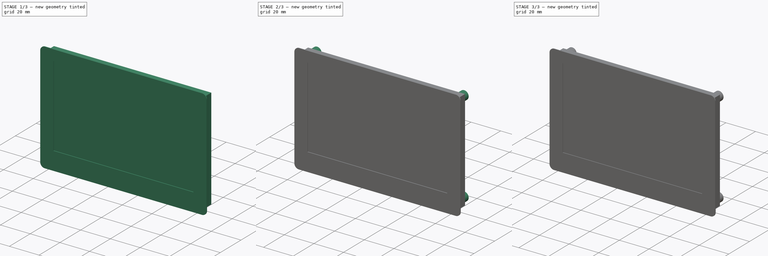
[diagram: build sequence overview — one tinted view per stage of 3, left to right]
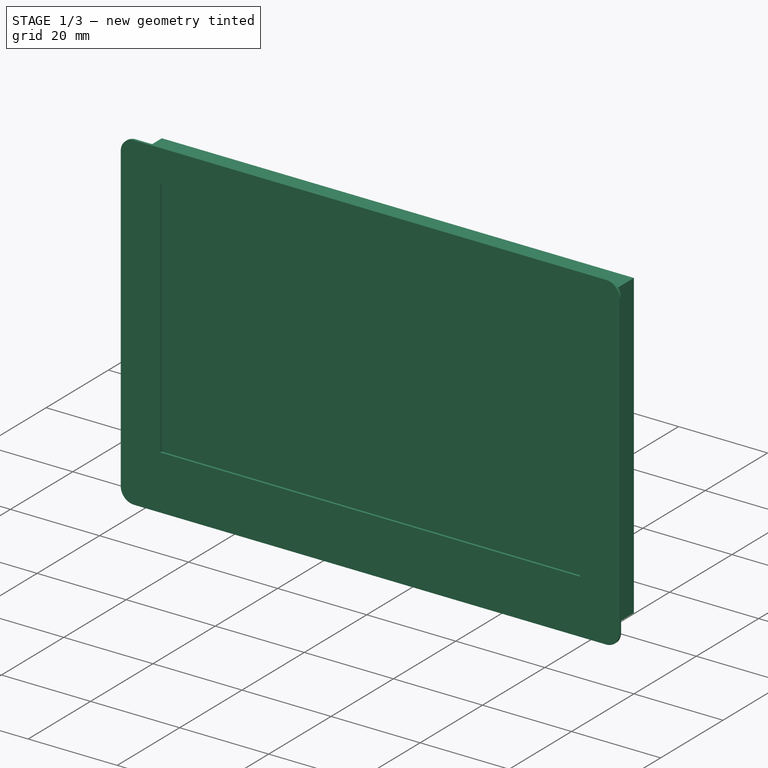
[diagram: stage 1 of 3 — iso view after this stage's code; geometry added in this stage tinted green]
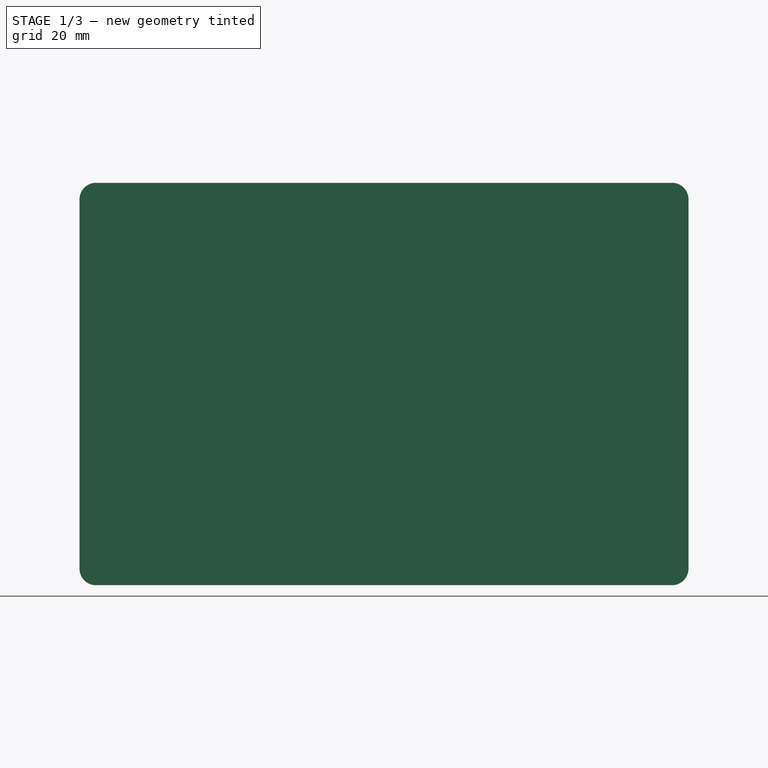
[diagram: stage 1 of 3 — front view after this stage's code; geometry added in this stage tinted green]
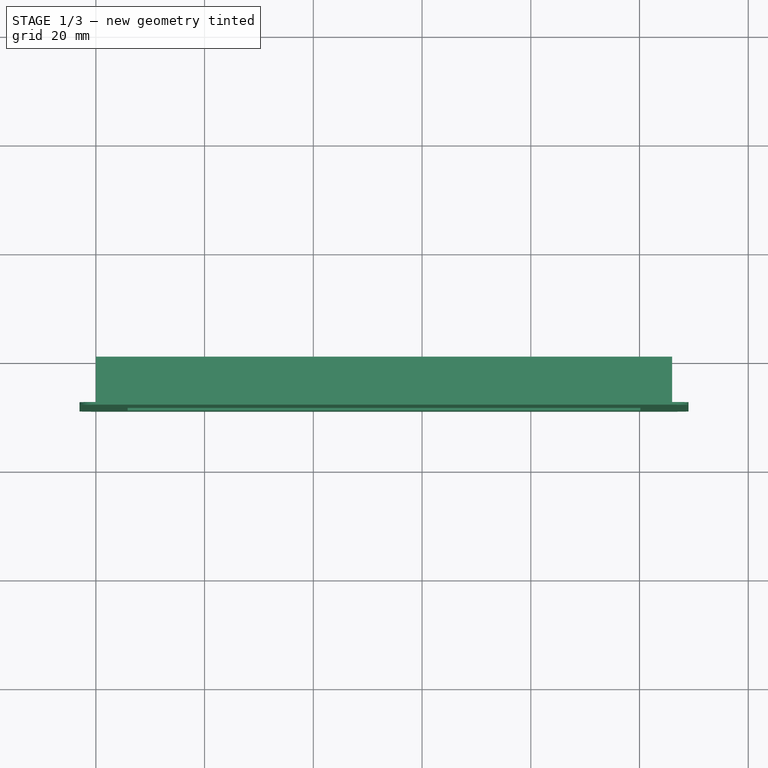
[diagram: stage 1 of 3 — top view after this stage's code; geometry added in this stage tinted green]
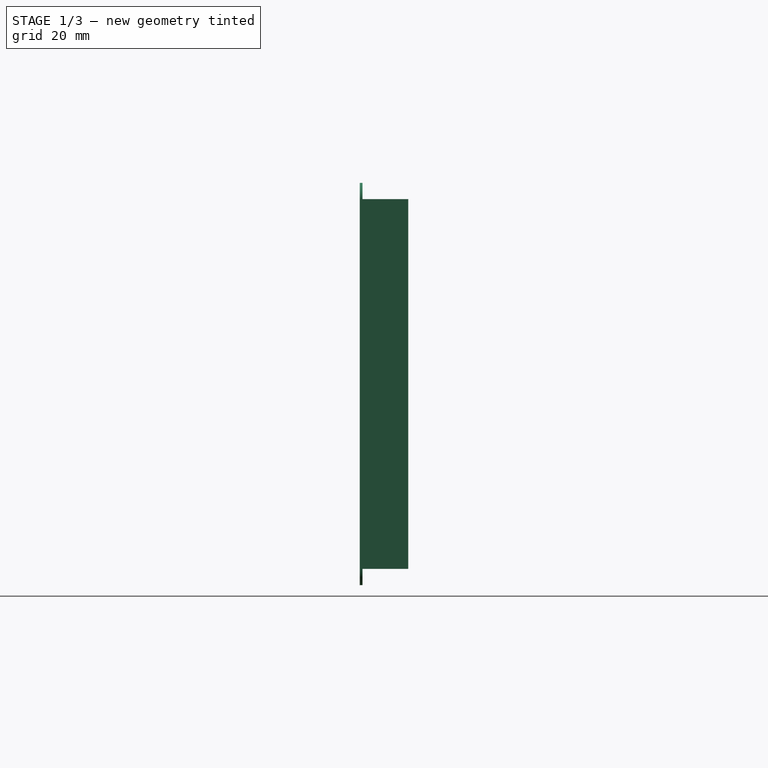
[diagram: stage 1 of 3 — right view after this stage's code; geometry added in this stage tinted green]
FCSTD DOCUMENT  (FreeCAD 1.0R39109 (Git))
Label: Gehäuse
License: All rights reserved
LicenseURL: https://en.wikipedia.org/wiki/All_rights_reserved
objects: Sketcher::SketchObject×6, PartDesign::Pad×5, PartDesign::Body×2, App::Part×1, PartDesign::ShapeBinder×1, PartDesign::SubShapeBinder×1
note: 31 computed .brp shape members not serialized (recipe doc carries the construction recipe); baked Part::Feature solids carry a one-line shape summary decoded from their .brp

FEATURE [Sketcher::SketchObject] Sketch
  ArcFitTolerance = 1e-06
  AttachmentSupport = -> [XZ_Plane001]
  FullyConstrained = true
  MakeInternals = false
  MapMode = 5
  Placement = pos=(0,0,0) rot=(1,0,0;1.5708rad)
  sketch-geometry (4):
    g0: LineSegment StartX=0 StartY=0 StartZ=0 EndX=106 EndY=0 EndZ=0
    g1: LineSegment StartX=106 StartY=0 StartZ=0 EndX=106 EndY=68 EndZ=0
    g2: LineSegment StartX=106 StartY=68 StartZ=0 EndX=0 EndY=68 EndZ=0
    g3: LineSegment StartX=0 StartY=68 StartZ=0 EndX=0 EndY=0 EndZ=0
  constraints (11):
    c: Coincident(g0,g1)
    c: Coincident(g1,g2)
    c: Coincident(g2,g3)
    c: Coincident(g3,g0)
    c: Horizontal(g0)
    c: Horizontal(g2)
    c: Vertical(g1)
    c: Vertical(g3)
    c: Distance(g1,g3) = 106
    c: Distance(g0,g2) = 68
    c: Coincident(g0,g-1)
FEATURE [PartDesign::Pad] Pad
  Direction = (0,-1,2e-16)
  Length = 8.4
  Length2 = 10
  Placement = pos=(0,0,0) rot=(1,0,0;1.5708rad)
  Profile = -> Sketch
  ReferenceAxis = -> Sketch [N_Axis]
  Refine = true
  Suppressed = false
  Type = 0
FEATURE [PartDesign::Body] Body  label="LCD"
  AllowCompound = false
  Group = -> [Sketch,Pad,Sketch001,Pad001,Sketch002,Pad002,Sketch003,Pad003]
  Origin = -> Origin001
  Tip = -> Pad003
FEATURE [App::Part] Part
  Group = -> [Body]
  Origin = -> Origin
FEATURE [PartDesign::ShapeBinder] CopyBinder
  Placement = pos=(0,0,0) rot=(1,0,0;1.5708rad)
  TraceSupport = false
FEATURE [Sketcher::SketchObject] Sketch005
  ArcFitTolerance = 1e-06
  AttachmentSupport = -> [CopyBinder]
  ExternalGeometry = -> [CopyBinder]
  FullyConstrained = false
  MakeInternals = false
  MapMode = 5
  Placement = pos=(0,-8.4,0) rot=(1,0,0;1.5708rad)
  sketch-geometry (16):
    g0: LineSegment [constr] StartX=0 StartY=68 StartZ=0 EndX=0 EndY=0 EndZ=0
    g1: LineSegment [constr] StartX=0 StartY=0 StartZ=0 EndX=106 EndY=0 EndZ=0
    g2: LineSegment [constr] StartX=106 StartY=0 StartZ=0 EndX=106 EndY=68 EndZ=0
    g3: LineSegment [constr] StartX=106 StartY=68 StartZ=0 EndX=0 EndY=68 EndZ=0
    g4: LineSegment StartX=-3 StartY=68 StartZ=0 EndX=-3 EndY=0 EndZ=0
    g5: ArcOfCircle CenterX=0 CenterY=0 CenterZ=0 NormalX=0 NormalY=0 NormalZ=-1 AngleXU=-3.14159 Radius=3 StartAngle=1.5708 EndAngle=3.14159
    g6: LineSegment StartX=-2e-16 StartY=-3 StartZ=0 EndX=106 EndY=-3 EndZ=0
    g7: ArcOfCircle CenterX=106 CenterY=0 CenterZ=0 NormalX=0 NormalY=0 NormalZ=-1 AngleXU=1.5708 Radius=3 StartAngle=1.5708 EndAngle=3.14159
    g8: LineSegment StartX=109 StartY=2e-16 StartZ=0 EndX=109 EndY=68 EndZ=0
    g9: ArcOfCircle CenterX=106 CenterY=68 CenterZ=0 NormalX=0 NormalY=0 NormalZ=-1 AngleXU=0 Radius=3 StartAngle=1.5708 EndAngle=3.14159
    g10: LineSegment StartX=106 StartY=71 StartZ=0 EndX=0 EndY=71 EndZ=0
    g11: ArcOfCircle CenterX=0 CenterY=68 CenterZ=0 NormalX=0 NormalY=0 NormalZ=-1 AngleXU=-1.5708 Radius=3 StartAngle=1.5708 EndAngle=3.14159
    g12: LineSegment StartX=5.85 StartY=63.8 StartZ=0 EndX=5.85 EndY=9.2 EndZ=0
    g13: LineSegment StartX=5.85 StartY=9.2 StartZ=0 EndX=100.15 EndY=9.2 EndZ=0
    g14: LineSegment StartX=100.15 StartY=9.2 StartZ=0 EndX=100.15 EndY=63.8 EndZ=0
    g15: LineSegment StartX=100.15 StartY=63.8 StartZ=0 EndX=5.85 EndY=63.8 EndZ=0
  constraints (28):
    c: Coincident(g0,g1)
    c: Coincident(g1,g2)
    c: Coincident(g2,g3)
    c: Coincident(g3,g0)
    c: Vertical(g0)
    c: Vertical(g2)
    c: Horizontal(g1)
    c: Horizontal(g3)
    c: Coincident(g0,g-9)
    c: Coincident(g1,g-10)
    c: Tangent(g4,g5) = -1.5708
    c: Tangent(g4,g11) = -1.5708
    c: Tangent(g5,g6) = -1.5708
    c: Tangent(g6,g7) = -1.5708
    c: Tangent(g7,g8) = -1.5708
    c: Tangent(g8,g9) = -1.5708
    c: Tangent(g9,g10) = -1.5708
    c: Tangent(g10,g11) = -1.5708
    c: Coincident(g12,g13)
    c: Coincident(g13,g14)
    c: Coincident(g14,g15)
    c: Coincident(g15,g12)
    c: Vertical(g12)
    c: Vertical(g14)
    c: Horizontal(g13)
    c: Horizontal(g15)
    c: Coincident(g12,g-5)
    c: Coincident(g13,g-6)
FEATURE [PartDesign::Pad] Pad004
  Direction = (0,-1,2e-16)
  Length = 0.5
  Length2 = 10
  Placement = pos=(0,0,0) rot=(1,0,0;1.5708rad)
  Profile = -> Sketch005
  ReferenceAxis = -> Sketch005 [N_Axis]
  Refine = true
  Suppressed = false
  Type = 0
FEATURE [PartDesign::SubShapeBinder] Binder
  BindCopyOnChange = 0
  BindMode = 0
  ClaimChildren = false
  Context = -> Body001 [Binder.]
  Fuse = false
  MakeFace = true
  OffsetFill = false
  OffsetIntersection = false
  OffsetJoinType = 0
  OffsetOpenResult = false
  PartialLoad = false
  Refine = true
  Relative = true
  Support = -> [Pad004[Face13]]
  _Version = 2
FEATURE [Sketcher::SketchObject] Sketch006
  ArcFitTolerance = 1e-06
  AttachmentSupport = -> [Pad004]
  FullyConstrained = true
  MakeInternals = false
  MapMode = 5
  Placement = pos=(0,-8.4,2.8e-15) rot=(-1,0,0;1.5708rad)
FEATURE [PartDesign::Body] Body001  label="Body"
  AllowCompound = false
  Group = -> [CopyBinder,Sketch005,Pad004,Binder,Sketch006]
  Origin = -> Origin002
  Tip = -> Pad004
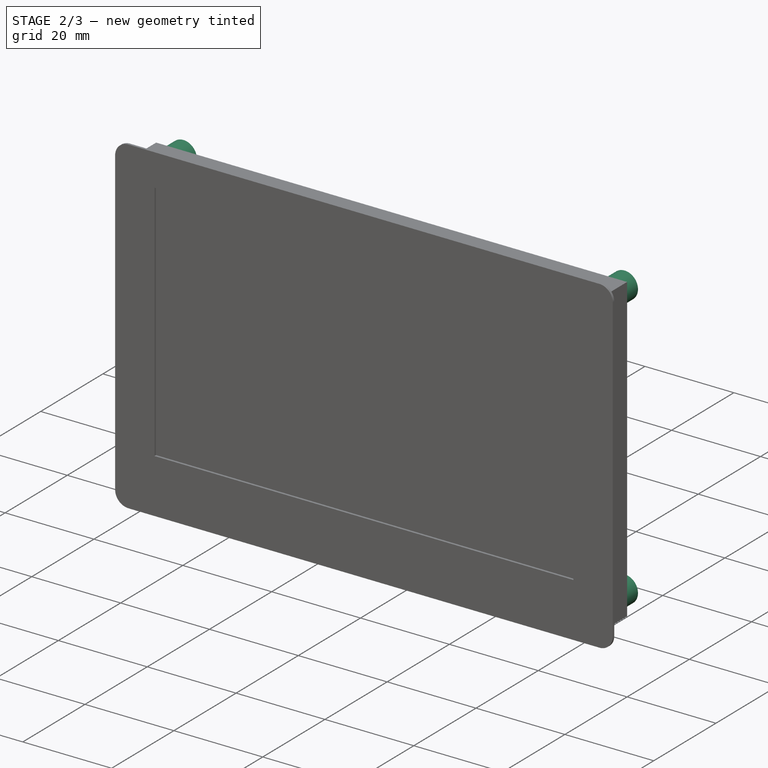
[diagram: stage 2 of 3 — iso view after this stage's code; geometry added in this stage tinted green]
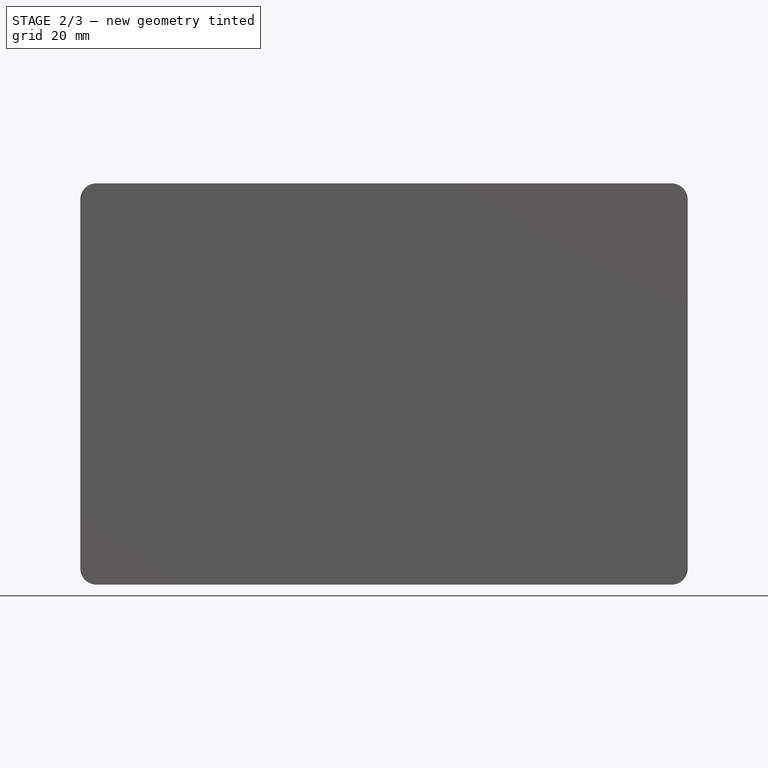
[diagram: stage 2 of 3 — front view after this stage's code; geometry added in this stage tinted green]
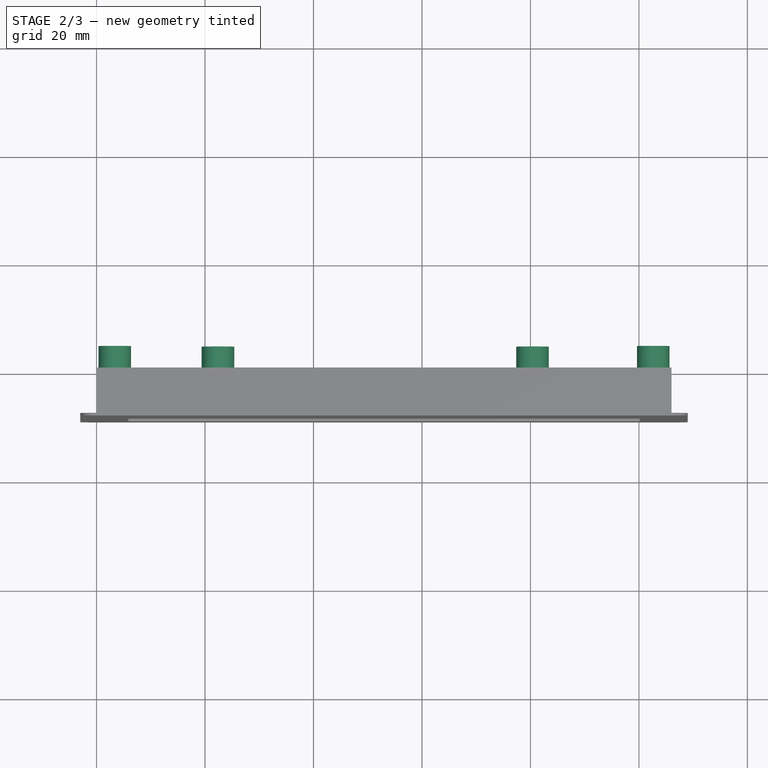
[diagram: stage 2 of 3 — top view after this stage's code; geometry added in this stage tinted green]
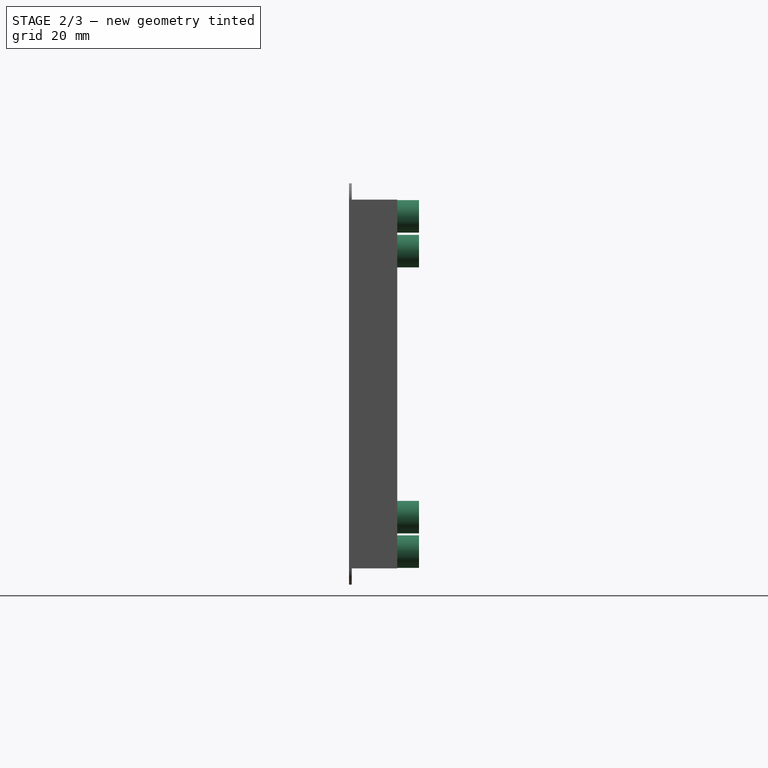
[diagram: stage 2 of 3 — right view after this stage's code; geometry added in this stage tinted green]
FEATURE [Sketcher::SketchObject] Sketch001
  ArcFitTolerance = 1e-06
  AttachmentSupport = -> [Pad]
  ExternalGeometry = -> [Pad]
  FullyConstrained = true
  MakeInternals = false
  MapMode = 5
  Placement = pos=(0,7.6e-15,0) rot=(-1,0,0;1.5708rad)
  sketch-geometry (10):
    g0: Circle CenterX=3.35 CenterY=-64.9 CenterZ=0 NormalX=0 NormalY=0 NormalZ=1 AngleXU=0 Radius=3
    g1: Circle CenterX=102.65 CenterY=-64.9 CenterZ=0 NormalX=0 NormalY=0 NormalZ=1 AngleXU=0 Radius=3
    g2: Circle CenterX=102.65 CenterY=-3.1 CenterZ=0 NormalX=0 NormalY=0 NormalZ=1 AngleXU=0 Radius=3
    g3: Circle CenterX=3.35 CenterY=-3.1 CenterZ=0 NormalX=0 NormalY=0 NormalZ=1 AngleXU=0 Radius=3
    g4: LineSegment [constr] StartX=106 StartY=-34 StartZ=0 EndX=0 EndY=-34 EndZ=0
    g5: LineSegment [constr] StartX=53 StartY=0 StartZ=0 EndX=53 EndY=-68 EndZ=0
    g6: Circle CenterX=80.38 CenterY=-9.46 CenterZ=0 NormalX=0 NormalY=0 NormalZ=1 AngleXU=0 Radius=3
    g7: Circle CenterX=80.38 CenterY=-58.5 CenterZ=0 NormalX=0 NormalY=0 NormalZ=1 AngleXU=0 Radius=3
    g8: Circle CenterX=22.38 CenterY=-9.46 CenterZ=0 NormalX=0 NormalY=0 NormalZ=1 AngleXU=0 Radius=3
    g9: Circle CenterX=22.38 CenterY=-58.5 CenterZ=0 NormalX=0 NormalY=0 NormalZ=1 AngleXU=0 Radius=3
  constraints (26):
    c: Diameter(g0) = 6
    c: Equal(g3,g0)
    c: Equal(g1,g0)
    c: Equal(g2,g0)
    c: DistanceX(g0,g1) = 99.3
    c: DistanceY(g0,g3) = 61.8
    c: Vertical(g1,g2)
    c: Horizontal(g3,g2)
    c: Symmetric(g-4,g-4,g4)
    c: Symmetric(g-6,g-6,g4)
    c: Symmetric(g-5,g-5,g5)
    c: Symmetric(g-3,g-3,g5)
    c: Distance(g6,g-4) = 25.62
    c: Distance(g6,g-5) = 9.46
    c: Distance(g7,g-3) = 9.5
    c: Vertical(g6,g7)
    c: Horizontal(g6,g8)
    c: Distance(g8,g-6) = 22.38
    c: Vertical(g8,g9)
    c: Horizontal(g7,g9)
    c: Equal(g9,g0)
    c: Equal(g7,g0)
    c: Equal(g6,g0)
    c: Equal(g8,g0)
    c: Symmetric(g0,g3,g4)
    c: Symmetric(g0,g1,g5)
FEATURE [PartDesign::Pad] Pad001
  BaseFeature = -> Pad
  Direction = (0,1,2e-16)
  Length = 4
  Length2 = 10
  Placement = pos=(0,0,0) rot=(1,0,0;1.5708rad)
  Profile = -> Sketch001
  ReferenceAxis = -> Sketch001 [N_Axis]
  Refine = true
  Suppressed = false
  Type = 0
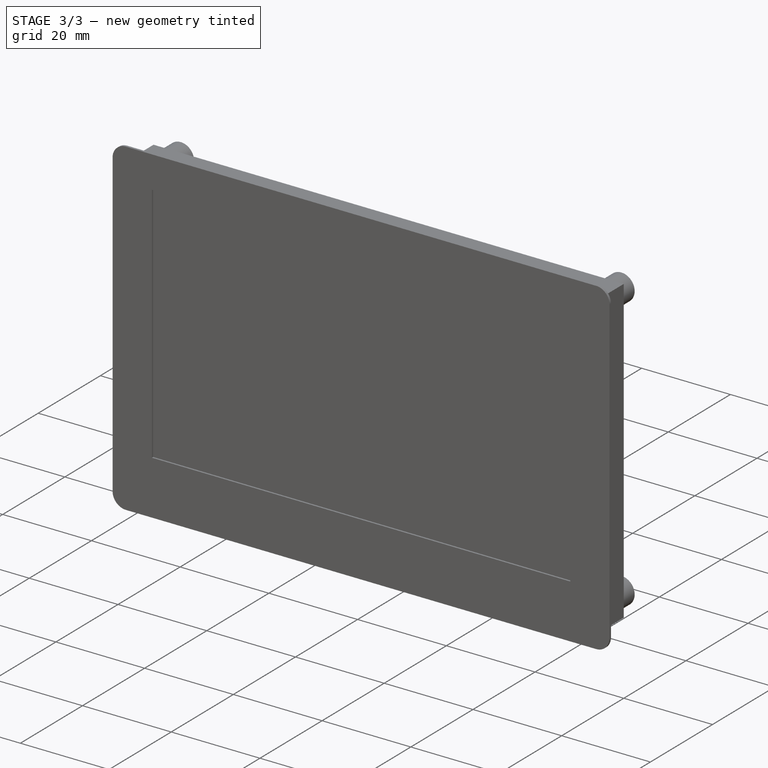
[diagram: stage 3 of 3 — iso view after this stage's code; geometry added in this stage tinted green]
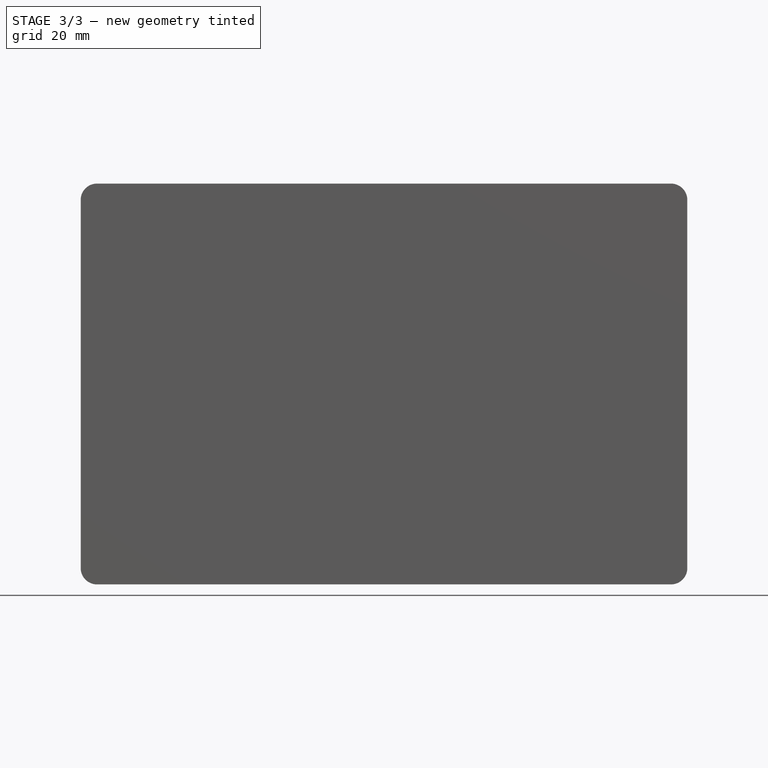
[diagram: stage 3 of 3 — front view after this stage's code; geometry added in this stage tinted green]
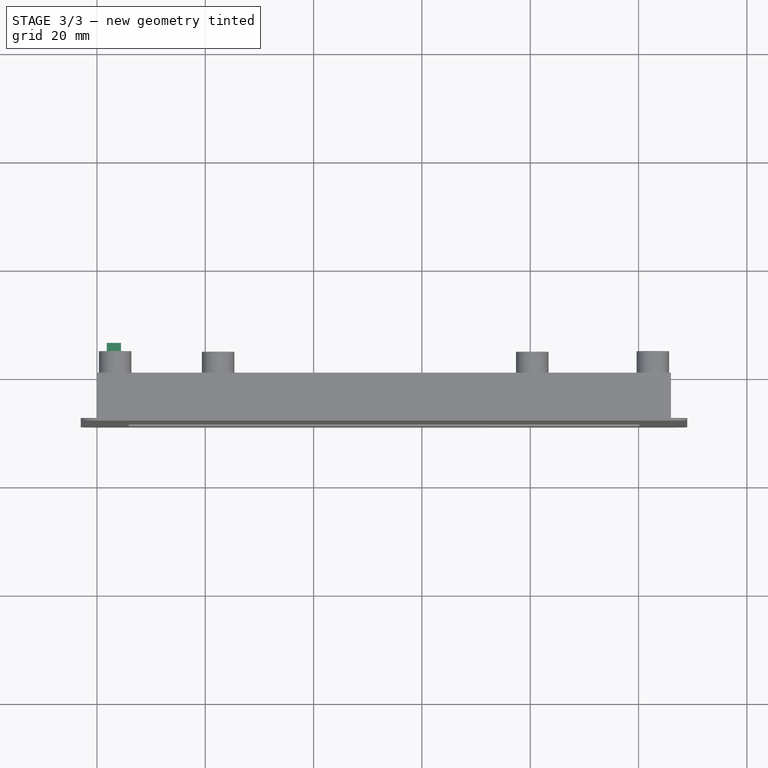
[diagram: stage 3 of 3 — top view after this stage's code; geometry added in this stage tinted green]
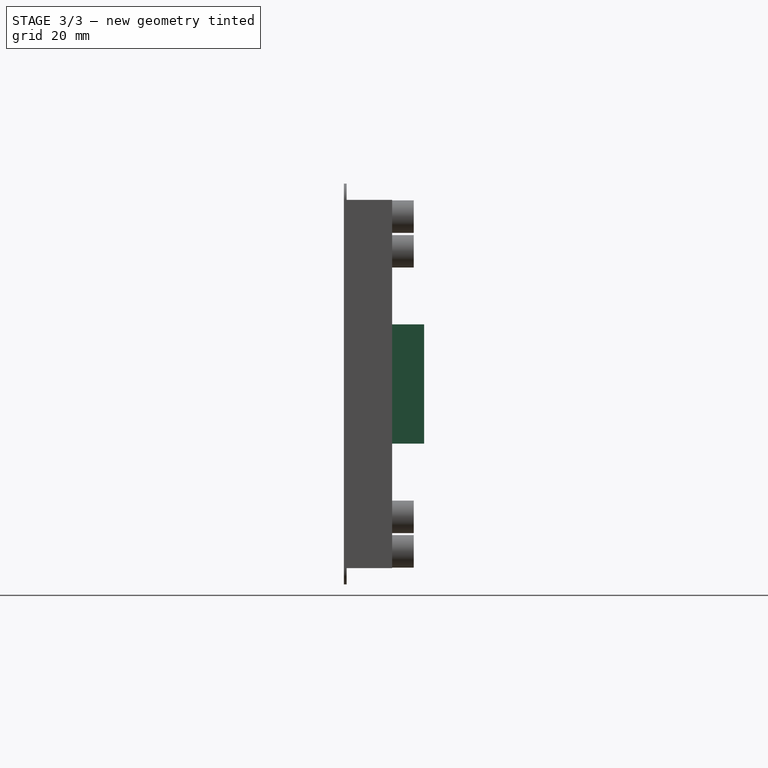
[diagram: stage 3 of 3 — right view after this stage's code; geometry added in this stage tinted green]
FEATURE [Sketcher::SketchObject] Sketch002
  ArcFitTolerance = 1e-06
  AttachmentSupport = -> [XZ_Plane001]
  ExternalGeometry = -> [Pad001]
  FullyConstrained = false
  MakeInternals = false
  MapMode = 5
  Placement = pos=(0,0,0) rot=(1,0,0;1.5708rad)
  sketch-geometry (5):
    g0: LineSegment StartX=4.45 StartY=45 StartZ=0 EndX=1.8 EndY=45 EndZ=0
    g1: LineSegment StartX=1.8 StartY=45 StartZ=0 EndX=1.8 EndY=23 EndZ=0
    g2: LineSegment StartX=1.8 StartY=23 StartZ=0 EndX=4.45 EndY=23 EndZ=0
    g3: LineSegment StartX=4.45 StartY=23 StartZ=0 EndX=4.45 EndY=45 EndZ=0
    g4: LineSegment [constr] StartX=0 StartY=34 StartZ=0 EndX=8.82027 EndY=34 EndZ=0
  constraints (13):
    c: Coincident(g0,g1)
    c: Coincident(g1,g2)
    c: Coincident(g2,g3)
    c: Coincident(g3,g0)
    c: Horizontal(g0)
    c: Horizontal(g2)
    c: Vertical(g1)
    c: Vertical(g3)
    c: Distance(g1,g-3) = 1.8
    c: Distance(g1,g3) = 2.65
    c: Distance(g0,g2) = 22
    c: Symmetric(g-3,g-3,g4)
    c: Symmetric(g0,g1,g4)
FEATURE [PartDesign::Pad] Pad002
  BaseFeature = -> Pad001
  Direction = (0,-1,2e-16)
  Length = 5.9
  Length2 = 10
  Placement = pos=(0,0,0) rot=(1,0,0;1.5708rad)
  Profile = -> Sketch002
  ReferenceAxis = -> Sketch002 [N_Axis]
  Refine = true
  Reversed = true
  Suppressed = false
  Type = 0
FEATURE [Sketcher::SketchObject] Sketch003
  ArcFitTolerance = 1e-06
  AttachmentSupport = -> [Pad002]
  ExternalGeometry = -> [Pad002]
  FullyConstrained = true
  MakeInternals = false
  MapMode = 5
  Placement = pos=(0,-8.4,0) rot=(1,0,0;1.5708rad)
  sketch-geometry (4):
    g0: LineSegment StartX=5.85 StartY=63.8 StartZ=0 EndX=5.85 EndY=9.2 EndZ=0
    g1: LineSegment StartX=5.85 StartY=9.2 StartZ=0 EndX=100.15 EndY=9.2 EndZ=0
    g2: LineSegment StartX=100.15 StartY=9.2 StartZ=0 EndX=100.15 EndY=63.8 EndZ=0
    g3: LineSegment StartX=100.15 StartY=63.8 StartZ=0 EndX=5.85 EndY=63.8 EndZ=0
  constraints (12):
    c: Coincident(g0,g1)
    c: Coincident(g1,g2)
    c: Coincident(g2,g3)
    c: Coincident(g3,g0)
    c: Vertical(g0)
    c: Vertical(g2)
    c: Horizontal(g1)
    c: Horizontal(g3)
    c: Distance(g3,g-3) = 4.2
    c: Distance(g2,g-4) = 5.85
    c: Distance(g-5,g0) = 5.85
    c: Distance(g-6,g1) = 9.2
FEATURE [PartDesign::Pad] Pad003
  BaseFeature = -> Pad002
  Direction = (0,-1,2e-16)
  Length = 0.1
  Length2 = 10
  Placement = pos=(0,0,0) rot=(1,0,0;1.5708rad)
  Profile = -> Sketch003
  ReferenceAxis = -> Sketch003 [N_Axis]
  Refine = true
  Suppressed = false
  Type = 0
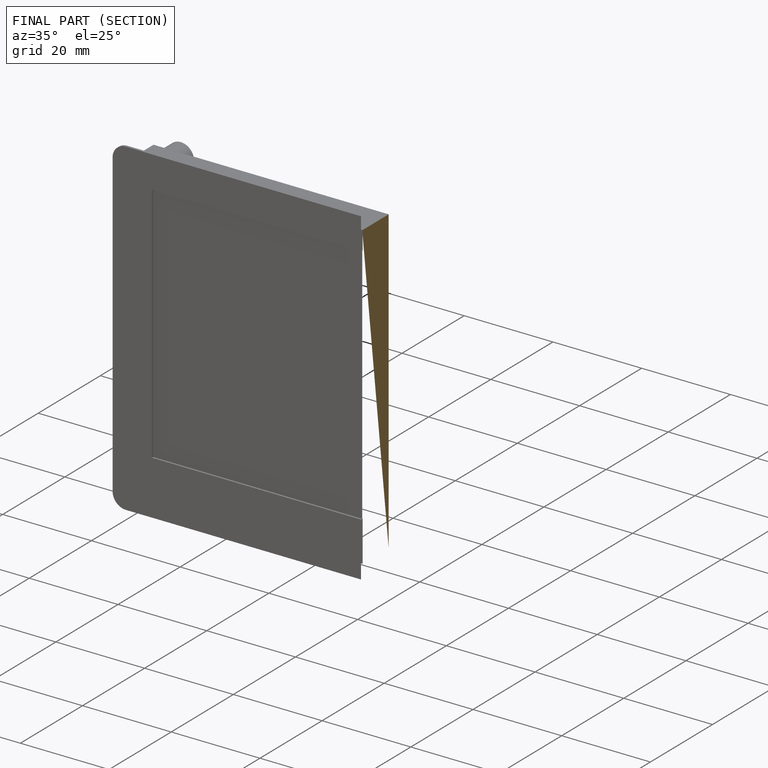
[diagram: finished part — half-section view (interior)]
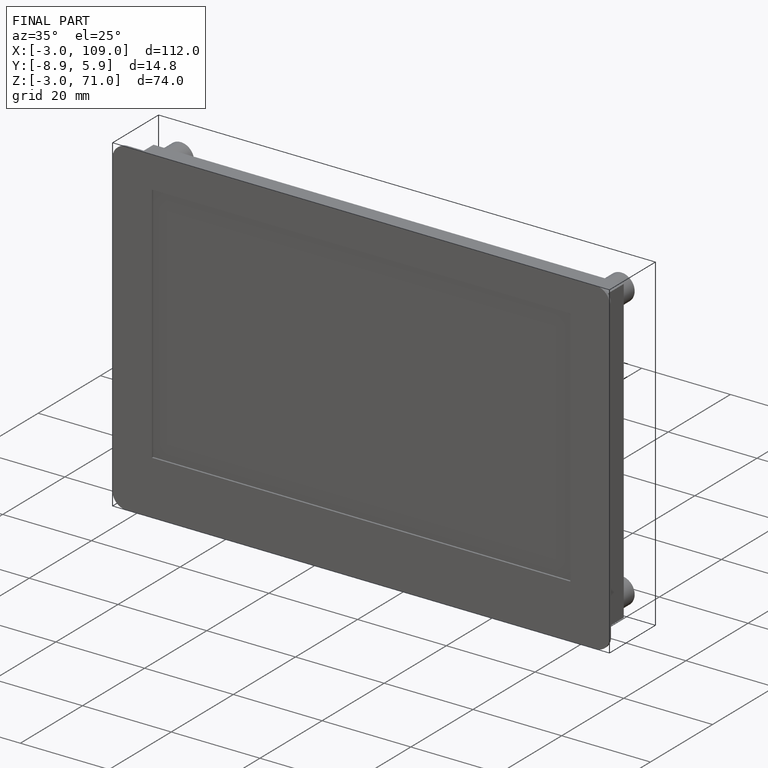
[diagram: finished part — iso view with bounding-box wireframe]
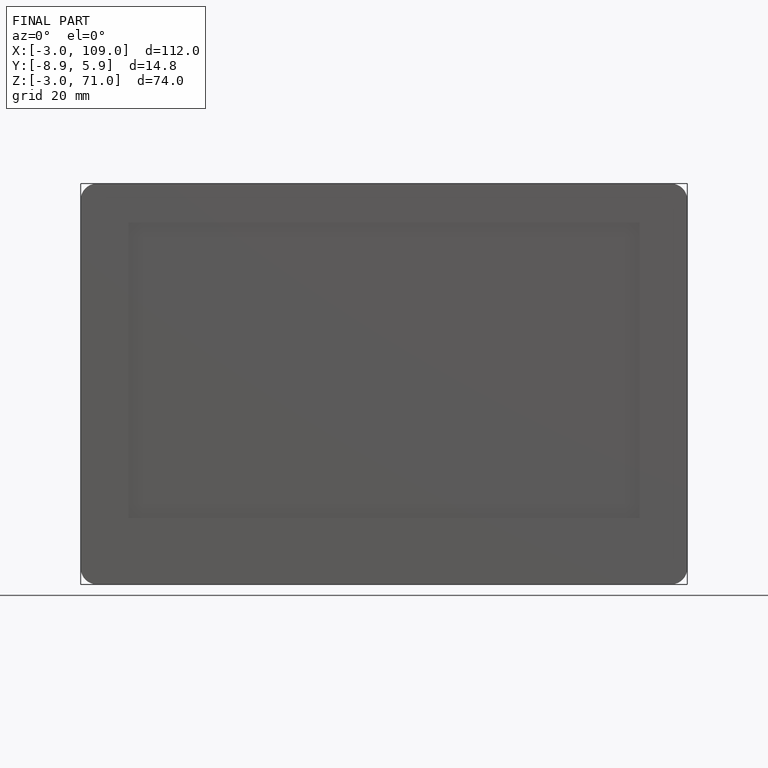
[diagram: finished part — front view with bounding-box wireframe]
